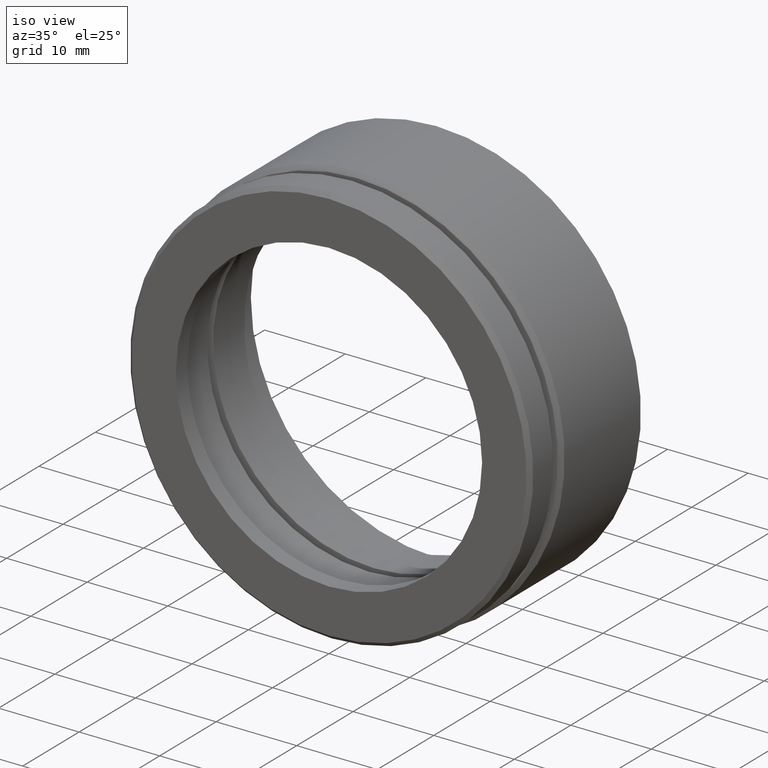
[diagram: clean part render]
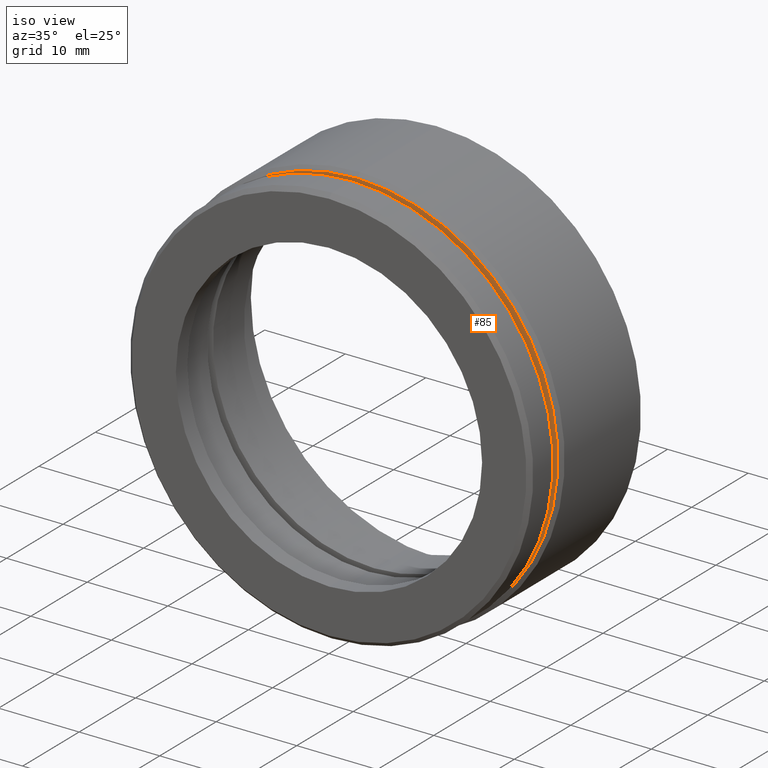
[diagram: same view with one face highlighted and labeled with its STEP entity id]
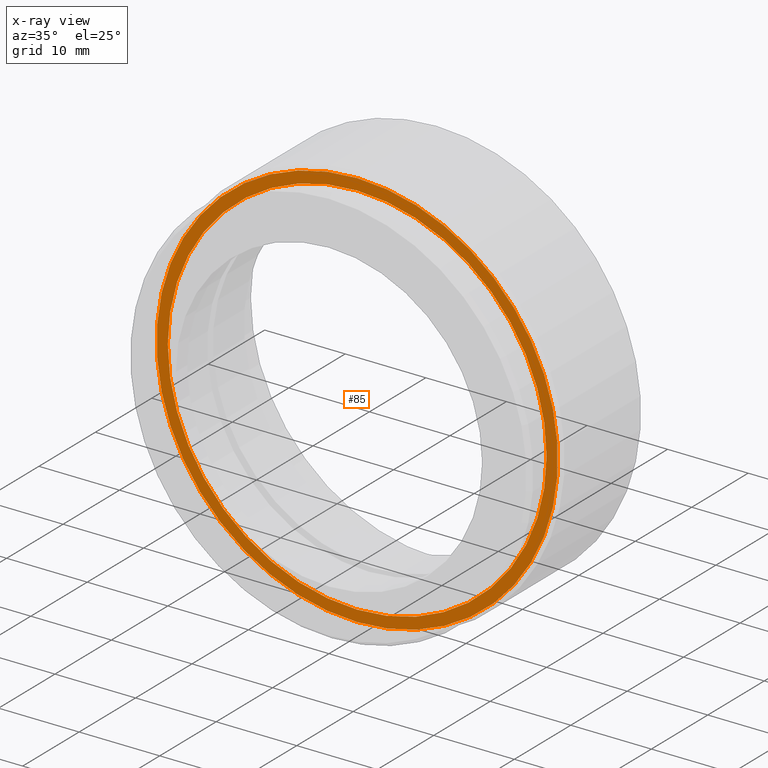
[diagram: x-ray of the same camera — body ghosted, the highlighted face saturated]
A machine part, iso view. The second image highlights one B-rep face of the part: STEP entity #85.
The next image is the same camera in x-ray: the body ghosted, the highlighted face saturated — about 0% of this face is hidden behind the body in this view.
In plain terms, the highlighted planar face has unit normal (0, -1, -0).
Its self-contained STEP definition (entity closure, byte-faithful):
#64 = FACE_BOUND ( 'NONE', #943, .T. ) ;
#85 = ADVANCED_FACE ( 'NONE', ( #268, #64 ), #977, .T. ) ;
#112 = CARTESIAN_POINT ( 'NONE',  ( 0.0000000000000000000, 5.000000000000000900, 24.89999999999999900 ) ) ;
#226 = VERTEX_POINT ( 'NONE', #362 ) ;
#230 = EDGE_CURVE ( 'NONE', #236, #274, #858, .T. ) ;
#236 = VERTEX_POINT ( 'NONE', #357 ) ;
#257 = CARTESIAN_POINT ( 'NONE',  ( 0.0000000000000000000, 5.000000000000000900, 0.0000000000000000000 ) ) ;
#258 = AXIS2_PLACEMENT_3D ( 'NONE', #312, #1035, #1027 ) ;
#268 = FACE_OUTER_BOUND ( 'NONE', #442, .T. ) ;
#274 = VERTEX_POINT ( 'NONE', #112 ) ;
#312 = CARTESIAN_POINT ( 'NONE',  ( 0.0000000000000000000, 5.000000000000000900, 0.0000000000000000000 ) ) ;
#317 = ORIENTED_EDGE ( 'NONE', *, *, #375, .F. ) ;
#319 = AXIS2_PLACEMENT_3D ( 'NONE', #257, #696, #960 ) ;
#355 = ORIENTED_EDGE ( 'NONE', *, *, #861, .F. ) ;
#357 = CARTESIAN_POINT ( 'NONE',  ( 3.079986699855593100E-015, 5.000000000000000900, -24.89999999999999900 ) ) ;
#362 = CARTESIAN_POINT ( 'NONE',  ( 0.0000000000000000000, 5.000000000000000000, -23.50000000000000000 ) ) ;
#375 = EDGE_CURVE ( 'NONE', #226, #384, #686, .T. ) ;
#384 = VERTEX_POINT ( 'NONE', #968 ) ;
#388 = CARTESIAN_POINT ( 'NONE',  ( 0.0000000000000000000, 5.000000000000000000, 0.0000000000000000000 ) ) ;
#409 = ORIENTED_EDGE ( 'NONE', *, *, #230, .T. ) ;
#435 = AXIS2_PLACEMENT_3D ( 'NONE', #796, #1102, #735 ) ;
#442 = EDGE_LOOP ( 'NONE', ( #638, #409 ) ) ;
#479 = DIRECTION ( 'NONE',  ( -0.0000000000000000000, -1.000000000000000000, -0.0000000000000000000 ) ) ;
#608 = AXIS2_PLACEMENT_3D ( 'NONE', #388, #479, #643 ) ;
#638 = ORIENTED_EDGE ( 'NONE', *, *, #883, .T. ) ;
#643 = DIRECTION ( 'NONE',  ( 0.0000000000000000000, 0.0000000000000000000, -1.000000000000000000 ) ) ;
#686 = CIRCLE ( 'NONE', #608, 23.50000000000000000 ) ;
#696 = DIRECTION ( 'NONE',  ( -0.0000000000000000000, -1.000000000000000000, -0.0000000000000000000 ) ) ;
#735 = DIRECTION ( 'NONE',  ( 0.0000000000000000000, 0.0000000000000000000, -1.000000000000000000 ) ) ;
#736 = AXIS2_PLACEMENT_3D ( 'NONE', #1011, #929, #970 ) ;
#796 = CARTESIAN_POINT ( 'NONE',  ( 0.0000000000000000000, 5.000000000000000000, 0.0000000000000000000 ) ) ;
#840 = CIRCLE ( 'NONE', #319, 24.89999999999999900 ) ;
#841 = CIRCLE ( 'NONE', #435, 23.50000000000000000 ) ;
#858 = CIRCLE ( 'NONE', #258, 24.89999999999999900 ) ;
#861 = EDGE_CURVE ( 'NONE', #384, #226, #841, .T. ) ;
#883 = EDGE_CURVE ( 'NONE', #274, #236, #840, .T. ) ;
#929 = DIRECTION ( 'NONE',  ( 0.0000000000000000000, -1.000000000000000000, -0.0000000000000000000 ) ) ;
#943 = EDGE_LOOP ( 'NONE', ( #317, #355 ) ) ;
#960 = DIRECTION ( 'NONE',  ( 0.0000000000000000000, 0.0000000000000000000, -1.000000000000000000 ) ) ;
#968 = CARTESIAN_POINT ( 'NONE',  ( 2.877919977996280300E-015, 5.000000000000000000, 23.50000000000000000 ) ) ;
#970 = DIRECTION ( 'NONE',  ( 0.0000000000000000000, 0.0000000000000000000, -1.000000000000000000 ) ) ;
#977 = PLANE ( 'NONE',  #736 ) ;
#1011 = CARTESIAN_POINT ( 'NONE',  ( 23.50000000000000000, 5.000000000000000900, 0.0000000000000000000 ) ) ;
#1027 = DIRECTION ( 'NONE',  ( 0.0000000000000000000, 0.0000000000000000000, -1.000000000000000000 ) ) ;
#1035 = DIRECTION ( 'NONE',  ( -0.0000000000000000000, -1.000000000000000000, -0.0000000000000000000 ) ) ;
#1102 = DIRECTION ( 'NONE',  ( -0.0000000000000000000, -1.000000000000000000, -0.0000000000000000000 ) ) ;